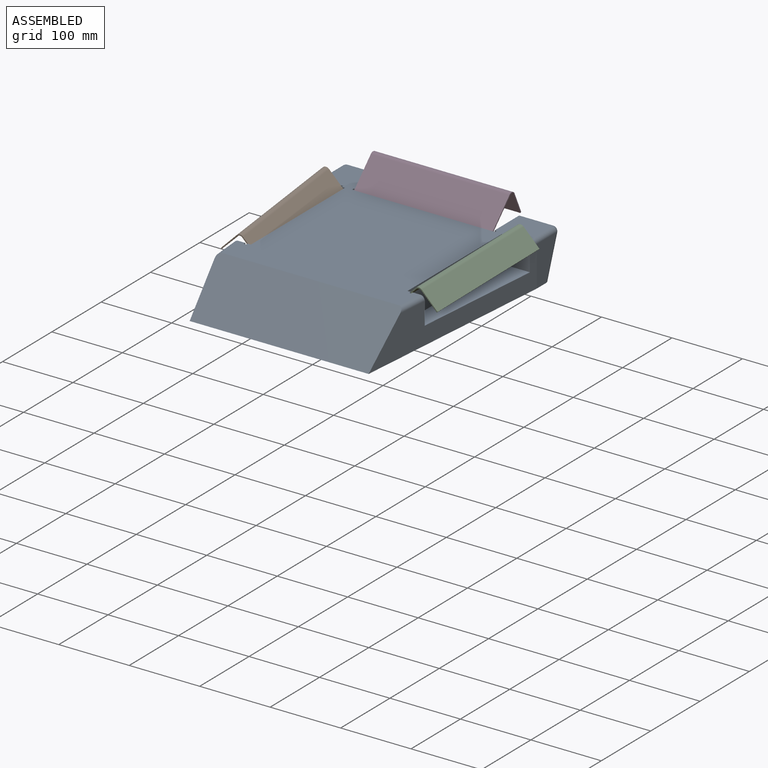
[diagram: assembled view]
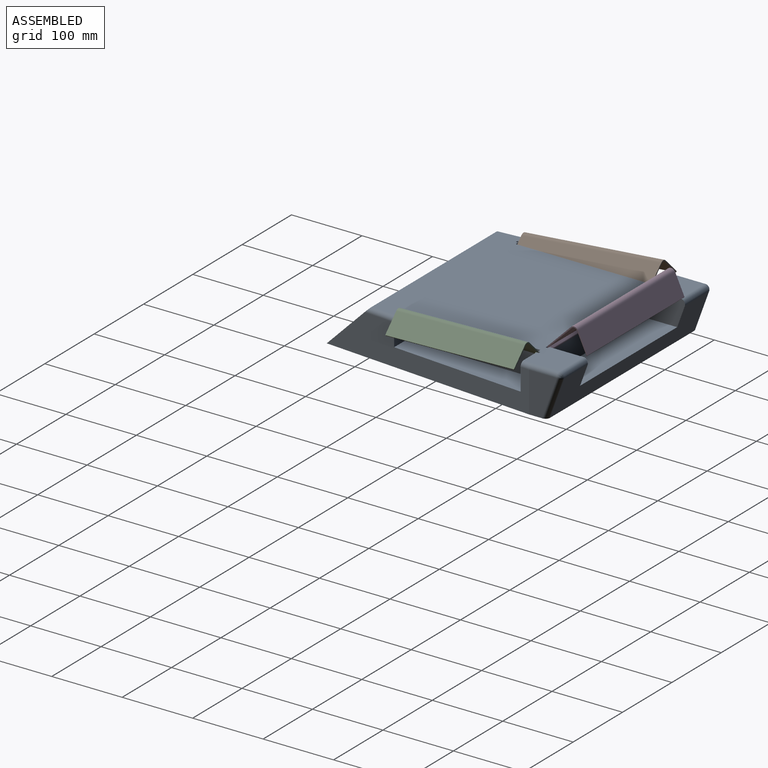
[diagram: assembled view, second angle]
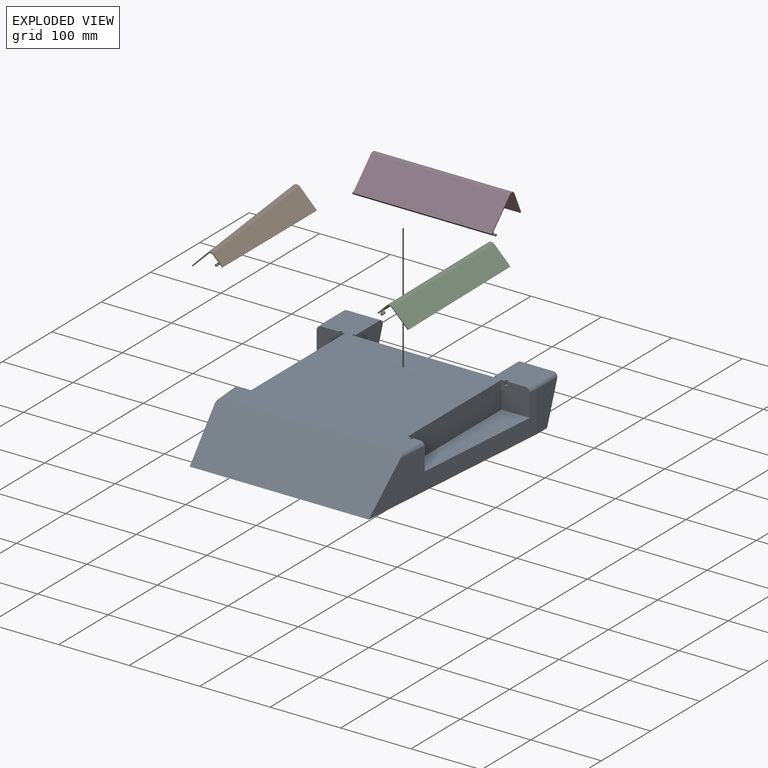
[diagram: exploded view]
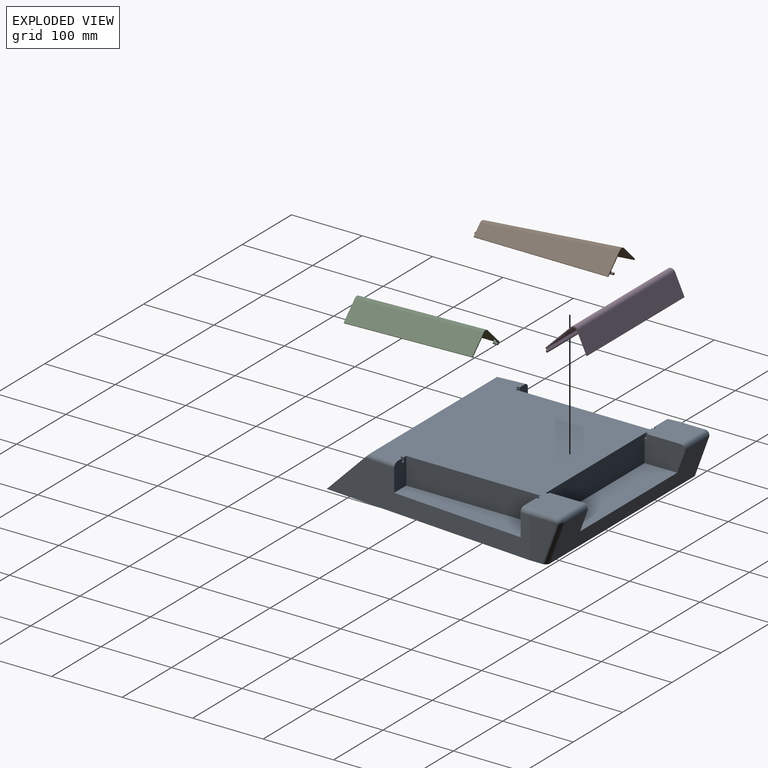
[diagram: exploded view, second angle]
ASSEMBLY  parts=4 mates=3
PART A: 54 faces, bbox 305x350.8x65.9 mm
  f0: plane 292.06x280.74mm, normal (0,0,1), area 57134.2mm2, adj f1,f2,f3,f4,f7,f10,f12,f13
  f1: cylinder r=6.35mm len=47.63mm, axis (-1,0,0), area 580.5mm2, adj f0,f38,f43,f47
  f2: plane 38.32x24.56mm, normal (0,1,0), area 899.7mm2, adj f0,f5,f9,f10,f15,f30,f31,f32
  f3: plane 40.44x38.32mm, normal (0,-1,0), area 1504.5mm2, adj f0,f5,f9,f10,f16,f22,f23,f24
  f4: plane 40.44x38.32mm, normal (0,-1,0), area 1504.5mm2, adj f0,f6,f11,f13,f14,f18,f19,f20
  f5: plane 304.8x57.15mm, normal (-1,-0.08,0), area 9771.6mm2, adj f2,f3,f7,f8,f9,f15,f16,f36
  f6: plane 304.8x57.15mm, normal (1,-0.08,0), area 9771.6mm2, adj f4,f7,f8,f11,f12,f14,f17,f35
  f7: plane 263.57x63.5mm, normal (0,-0.71,0.71), area 23260.5mm2, adj f0,f5,f6,f8,f15,f17
  f8: plane 330.2x304.8mm, normal (0,0,-1), area 92884.6mm2, adj f5,f6,f7,f35,f36,f38,f39,f42
  f9: plane 190.5x40.22mm, normal (0,0,1), area 6149.2mm2, adj f2,f3,f5,f10
  f10: plane 190.5x38.1mm, normal (-1,0,0), area 7258mm2, adj f0,f2,f3,f9
  f11: plane 190.5x40.22mm, normal (0,0,1), area 6149.2mm2, adj f4,f6,f12,f13
  f12: plane 38.32x24.56mm, normal (0,1,0), area 899.7mm2, adj f0,f6,f11,f13,f17,f26,f27,f28
  f13: plane 190.5x38.1mm, normal (1,0,0), area 7258mm2, adj f0,f4,f11,f12
  f14: cylinder r=6.35mm len=13.75mm, axis (-0.08,-1,0), area 127.1mm2, adj f0,f4,f6,f34
  f15: cylinder r=6.35mm len=44.98mm, axis (-0.08,1,0), area 403.7mm2, adj f0,f2,f5,f7
  f16: cylinder r=6.35mm len=13.75mm, axis (-0.08,1,0), area 127.1mm2, adj f0,f3,f5,f37
  f17: cylinder r=6.35mm len=44.98mm, axis (-0.08,-1,0), area 403.7mm2, adj f0,f6,f7,f12
  f18: plane 4.76x3.18mm, normal (1,0,0), area 15.1mm2, adj f0,f4,f19,f21
  f19: cylinder r=1.59mm len=3.18mm, axis (0,-1,0), area 15.8mm2, adj f4,f18,f20,f21
  f20: plane 4.76x3.18mm, normal (-1,0,0), area 15.1mm2, adj f0,f4,f19,f21
  f21: plane 6.35x3.18mm, normal (0,-1,0), area 19.1mm2, adj f0,f18,f19,f20
  f22: cylinder r=1.59mm len=3.18mm, axis (0,-1,0), area 15.8mm2, adj f3,f23,f24,f25
  f23: plane 4.76x3.18mm, normal (-1,0,0), area 15.1mm2, adj f0,f3,f22,f25
  f24: plane 4.76x3.18mm, normal (1,0,0), area 15.1mm2, adj f0,f3,f22,f25
  f25: plane 6.35x3.18mm, normal (0,-1,0), area 19.1mm2, adj f0,f22,f23,f24
  f26: plane 4.76x3.18mm, normal (-1,0,0), area 15.1mm2, adj f0,f12,f27,f29
  f27: cylinder r=1.59mm len=3.18mm, axis (0,1,0), area 15.8mm2, adj f12,f26,f28,f29
  f28: plane 4.76x3.18mm, normal (1,0,0), area 15.1mm2, adj f0,f12,f27,f29
  f29: plane 6.35x3.18mm, normal (0,1,0), area 19.1mm2, adj f0,f26,f27,f28
  f30: plane 4.76x3.18mm, normal (-1,0,0), area 15.1mm2, adj f0,f2,f31,f33
  f31: cylinder r=1.59mm len=3.18mm, axis (0,1,0), area 15.8mm2, adj f2,f30,f32,f33
  f32: plane 4.76x3.18mm, normal (1,0,0), area 15.1mm2, adj f0,f2,f31,f33
  f33: plane 6.35x3.18mm, normal (0,1,0), area 19.1mm2, adj f0,f30,f31,f32
  f34: extruded ~39.44x6.37mm, area 394.1mm2, adj f0,f14,f35,f43
  f35: plane 57.15x39.44mm, normal (1,0,0), area 1659.8mm2, adj f6,f8,f34,f42
  f36: plane 57.15x39.44mm, normal (-1,0,0), area 1659.8mm2, adj f5,f8,f37,f39
  f37: extruded ~39.44x6.37mm, area 394.1mm2, adj f0,f16,f36,f40
  f38: plane 292.1x54.98mm, normal (0,0.94,-0.34), area 10893.6mm2, adj f1,f8,f39,f41,f42,f45,f46,f47
  f39: cylinder r=6.35mm len=59.32mm, axis (0,-0.34,-0.94), area 592mm2, adj f8,f36,f38,f40
  f40: bspline ~8.52x6.37mm, area 76.2mm2, adj f37,f39,f41
  f41: cylinder r=6.35mm len=47.63mm, axis (-1,0,0), area 580.4mm2, adj f0,f38,f40,f46
  f42: cylinder r=6.35mm len=59.32mm, axis (0,0.34,0.94), area 592mm2, adj f8,f35,f38,f43
  f43: bspline ~8.52x6.37mm, area 76.2mm2, adj f1,f34,f42
  f44: plane 203.2x38.1mm, normal (0,1,0), area 7530.2mm2, adj f0,f45,f46,f47,f48,f50,f52,f53
  f45: plane 196.85x46.38mm, normal (0,0,1), area 9130.8mm2, adj f38,f44,f46,f47
  f46: plane 57.53x38.1mm, normal (1,0,0), area 1993.5mm2, adj f0,f38,f41,f44,f45,f51,f52
  f47: plane 57.53x38.1mm, normal (-1,0,0), area 1993.5mm2, adj f0,f1,f38,f44,f45,f48,f49
  f48: cylinder r=1.59mm len=3.18mm, axis (-1,0,0), area 15.8mm2, adj f44,f47,f49,f50
  f49: plane 4.76x3.18mm, normal (0,-1,0), area 15.1mm2, adj f0,f47,f48,f50
  f50: plane 6.35x3.18mm, normal (-1,0,0), area 19.1mm2, adj f0,f44,f48,f49
  f51: plane 4.76x3.18mm, normal (0,-1,0), area 15.1mm2, adj f0,f46,f52,f53
  f52: cylinder r=1.59mm len=3.18mm, axis (-1,0,0), area 15.8mm2, adj f44,f46,f51,f53
  f53: plane 6.35x3.18mm, normal (1,0,0), area 19.1mm2, adj f0,f44,f51,f52
PART B: 20 faces, bbox 40.2x196.9x38.1 mm
  f0: plane 3.18x3.18mm, normal (-1,0,0), area 10.1mm2, adj f8,f14,f18,f19
  f1: plane 3.18x3.18mm, normal (1,0,0), area 10.1mm2, adj f8,f14,f18,f19
  f2: plane 3.18x3.18mm, normal (0,1,0), area 7.9mm2, adj f18
  f3: plane 190.5x33.84mm, normal (0,0,1), area 4935.3mm2, adj f7,f8,f9,f15
  f4: plane 3.18x3.18mm, normal (1,0,0), area 10.1mm2, adj f7,f14,f16,f17
  f5: plane 3.18x3.18mm, normal (-1,0,0), area 10.1mm2, adj f7,f14,f16,f17
  f6: plane 3.18x3.18mm, normal (0,-1,0), area 7.9mm2, adj f16
  f7: plane 38.1x24.34mm, normal (0,-1,0), area 98.9mm2, adj f3,f4,f5,f9,f10,f11,f12,f13
  f8: plane 40.22x38.1mm, normal (0,1,0), area 124.1mm2, adj f0,f1,f3,f9,f10,f11,f12,f13
  f9: cylinder r=6.35mm len=191.55mm, axis (-0.08,1,0), area 1906.7mm2, adj f3,f7,f8,f10
  f10: plane 190.5x31.75mm, normal (-1,-0.08,0), area 6069.3mm2, adj f7,f8,f9,f11
  f11: plane 190.5x17.46mm, normal (0,0,-1), area 302.4mm2, adj f7,f8,f10,f12
  f12: plane 190.5x31.75mm, normal (1,0.08,0), area 6069.3mm2, adj f7,f8,f11,f13
  f13: bspline ~190.5x20.64mm, area 1427.6mm2, adj f7,f8,f12,f14
  f14: plane 190.5x33.87mm, normal (0,0,-1), area 4919.3mm2, adj f0,f1,f4,f5,f7,f8,f13,f15
  f15: plane 190.5x1.59mm, normal (1,0,0), area 302.4mm2, adj f3,f7,f8,f14
  f16: cylinder r=1.59mm len=6.35mm, axis (0,1,0), area 47.5mm2, adj f4,f5,f6,f7,f17
  f17: plane 4.76x3.18mm, normal (0,1,0), area 14mm2, adj f4,f5,f14,f16
  f18: cylinder r=1.59mm len=6.35mm, axis (0,-1,0), area 47.5mm2, adj f0,f1,f2,f8,f19
  f19: plane 4.76x3.18mm, normal (0,-1,0), area 14mm2, adj f0,f1,f14,f18
PART C: 20 faces, bbox 40.2x196.9x38.1 mm
  f0: plane 3.18x3.18mm, normal (1,0,0), area 10.1mm2, adj f8,f14,f18,f19
  f1: plane 3.18x3.18mm, normal (-1,0,0), area 10.1mm2, adj f8,f14,f18,f19
  f2: plane 3.18x3.18mm, normal (0,1,0), area 7.9mm2, adj f18
  f3: plane 190.5x33.84mm, normal (0,0,1), area 4935.3mm2, adj f7,f8,f9,f15
  f4: plane 3.18x3.18mm, normal (-1,0,0), area 10.1mm2, adj f7,f14,f16,f17
  f5: plane 3.18x3.18mm, normal (1,0,0), area 10.1mm2, adj f7,f14,f16,f17
  f6: plane 3.18x3.18mm, normal (0,-1,0), area 7.9mm2, adj f16
  f7: plane 38.1x24.34mm, normal (0,-1,0), area 98.9mm2, adj f3,f4,f5,f9,f10,f11,f12,f13
  f8: plane 40.22x38.1mm, normal (0,1,0), area 124.1mm2, adj f0,f1,f3,f9,f10,f11,f12,f13
  f9: cylinder r=6.35mm len=191.55mm, axis (0.08,1,0), area 1906.7mm2, adj f3,f7,f8,f10
  f10: plane 190.5x31.75mm, normal (1,-0.08,0), area 6069.3mm2, adj f7,f8,f9,f11
  f11: plane 190.5x17.46mm, normal (0,0,-1), area 302.4mm2, adj f7,f8,f10,f12
  f12: plane 190.5x31.75mm, normal (-1,0.08,0), area 6069.3mm2, adj f7,f8,f11,f13
  f13: bspline ~190.5x20.64mm, area 1427.6mm2, adj f7,f8,f12,f14
  f14: plane 190.5x33.87mm, normal (0,0,-1), area 4919.3mm2, adj f0,f1,f4,f5,f7,f8,f13,f15
  f15: plane 190.5x1.59mm, normal (-1,0,0), area 302.4mm2, adj f3,f7,f8,f14
  f16: cylinder r=1.59mm len=6.35mm, axis (0,1,0), area 47.5mm2, adj f4,f5,f6,f7,f17
  f17: plane 4.76x3.18mm, normal (0,1,0), area 14mm2, adj f4,f5,f14,f16
  f18: cylinder r=1.59mm len=6.35mm, axis (0,-1,0), area 47.5mm2, adj f0,f1,f2,f8,f19
  f19: plane 4.76x3.18mm, normal (0,-1,0), area 14mm2, adj f0,f1,f14,f18
PART D: 14 faces, bbox 203.2x57.5x38.1 mm
  f0: plane 196.85x4.76mm, normal (0,-1,0), area 937.5mm2, adj f1,f5,f6,f12
  f1: plane 196.85x51.18mm, normal (0,0,1), area 10075.4mm2, adj f0,f5,f6,f11
  f2: plane 196.85x3.18mm, normal (0,1,0), area 625mm2, adj f4,f5,f6,f12
  f3: plane 3.18x3.18mm, normal (1,0,0), area 7.9mm2, adj f12
  f4: plane 196.85x48.01mm, normal (0,0,-1), area 9450.4mm2, adj f2,f5,f6,f7
  f5: plane 57.53x38.1mm, normal (1,0,0), area 154.7mm2, adj f0,f1,f2,f4,f7,f8,f9,f10
  f6: plane 57.53x38.1mm, normal (-1,0,0), area 154.7mm2, adj f0,f1,f2,f4,f7,f8,f9,f10
  f7: cylinder r=4.76mm len=196.85mm, axis (-1,0,0), area 1799.9mm2, adj f4,f5,f6,f8
  f8: plane 196.85x30.12mm, normal (0,-0.94,0.34), area 6309.9mm2, adj f5,f6,f7,f9
  f9: plane 196.85x1.69mm, normal (0,0,-1), area 332.6mm2, adj f5,f6,f8,f10
  f10: plane 196.85x29.58mm, normal (0,0.94,-0.34), area 6196.1mm2, adj f5,f6,f9,f11
  f11: cylinder r=6.35mm len=196.85mm, axis (-1,0,0), area 2399.8mm2, adj f1,f5,f6,f10
  f12: cylinder r=1.59mm len=203.2mm, axis (-1,0,0), area 1045.1mm2, adj f0,f2,f3,f5,f6,f13
  f13: plane 3.18x3.18mm, normal (-1,0,0), area 7.9mm2, adj f12
PLACE A t=(80.06,27.61,-31.09)mm fixed
PLACE B rot(axis=(0,1,0),45deg) t=(4.12,27.61,-96.95)mm
PLACE C rot(axis=(0,-1,0),45deg) t=(156,27.61,-96.95)mm
PLACE D rot(axis=(1,0,0),45deg) t=(80.06,110.84,-114.48)mm
MATE revolute D.f12 <-> A.f48  axis (-1,0,0) through (181.66,169.86,27.65)mm
MATE revolute C.f16 <-> A.f19  axis (0,1,0) through (197.53,-23.19,27.65)mm
MATE revolute B.f16 <-> A.f22  axis (0,1,0) through (-37.42,-23.19,27.65)mm
